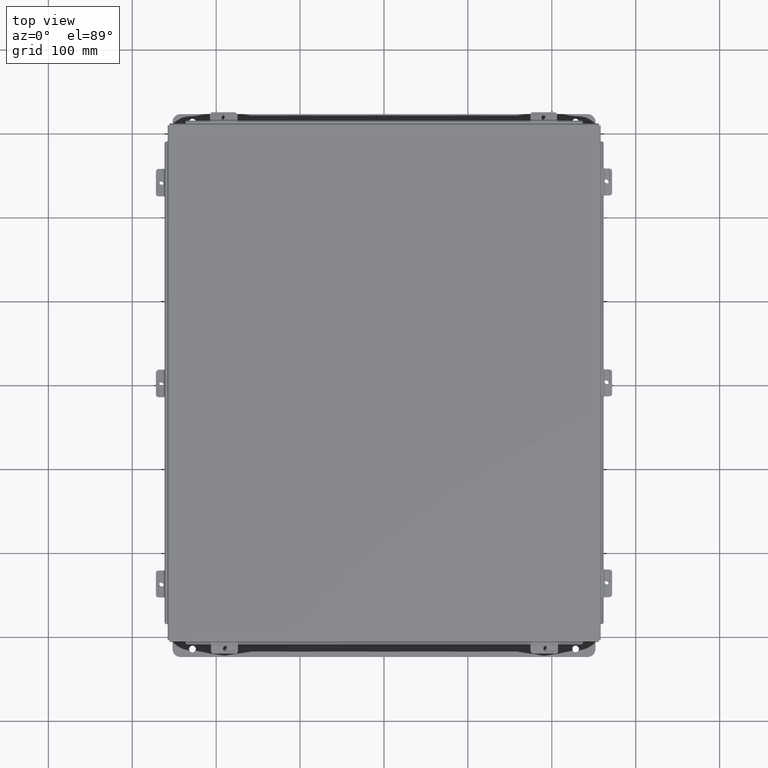
[diagram: clean part render]
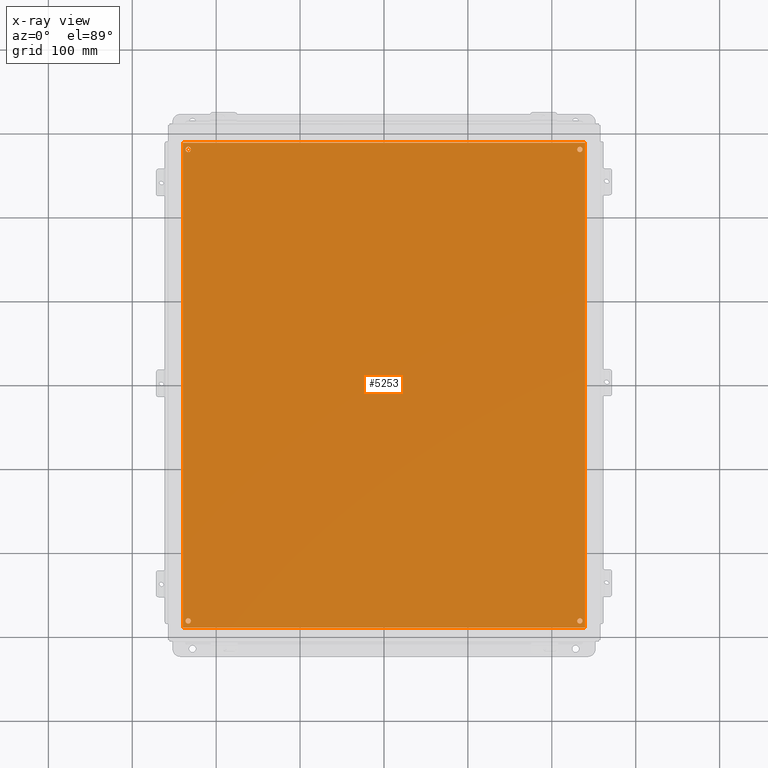
[diagram: x-ray — body ghosted, one internal face saturated and labeled with its STEP entity id]
A machine part, top view, then the same camera in x-ray: the body is ghosted and one INTERNAL B-rep face — a face not visible from any outside direction — is saturated and labeled: STEP entity #5253.
In plain terms, the highlighted planar face has unit normal (0, 0, -1).
Its self-contained STEP definition (entity closure, byte-faithful):
#9 = AXIS2_PLACEMENT_3D ( 'NONE', #3537, #8929, #4326 ) ;
#55 = DIRECTION ( 'NONE',  ( -1.000000000000000000, 0.0000000000000000000, 0.0000000000000000000 ) ) ;
#114 = CARTESIAN_POINT ( 'NONE',  ( 18.87500000000000000, 22.75000000000000000, -0.07470000000000003000 ) ) ;
#152 = EDGE_CURVE ( 'NONE', #3017, #9865, #9737, .T. ) ;
#164 = LINE ( 'NONE', #4732, #9960 ) ;
#464 = CIRCLE ( 'NONE', #9878, 0.1250000000000000600 ) ;
#611 = EDGE_CURVE ( 'NONE', #9865, #3588, #164, .T. ) ;
#654 = AXIS2_PLACEMENT_3D ( 'NONE', #7077, #2481, #7864 ) ;
#806 = ORIENTED_EDGE ( 'NONE', *, *, #2123, .T. ) ;
#948 = ORIENTED_EDGE ( 'NONE', *, *, #6760, .T. ) ;
#961 = ORIENTED_EDGE ( 'NONE', *, *, #152, .F. ) ;
#1052 = CARTESIAN_POINT ( 'NONE',  ( 0.2500000000000020000, 0.3120000000000025500, -0.07470000000000003000 ) ) ;
#1053 = CARTESIAN_POINT ( 'NONE',  ( 0.1250000000000019200, 0.3120000000000025500, -0.07470000000000003000 ) ) ;
#1317 = FACE_BOUND ( 'NONE', #1685, .T. ) ;
#1377 = VERTEX_POINT ( 'NONE', #8025 ) ;
#1685 = EDGE_LOOP ( 'NONE', ( #6758, #806 ) ) ;
#1774 = AXIS2_PLACEMENT_3D ( 'NONE', #8255, #3639, #9026 ) ;
#1839 = DIRECTION ( 'NONE',  ( -1.000000000000000000, 0.0000000000000000000, 0.0000000000000000000 ) ) ;
#1912 = VERTEX_POINT ( 'NONE', #1053 ) ;
#2037 = DIRECTION ( 'NONE',  ( -0.0000000000000000000, -1.000000000000000000, -0.0000000000000000000 ) ) ;
#2115 = CARTESIAN_POINT ( 'NONE',  ( 0.0000000000000000000, 0.0000000000000000000, -0.07470000000000003000 ) ) ;
#2123 = EDGE_CURVE ( 'NONE', #2878, #8574, #6114, .T. ) ;
#2162 = DIRECTION ( 'NONE',  ( 1.000000000000000000, 0.0000000000000000000, 0.0000000000000000000 ) ) ;
#2172 = CIRCLE ( 'NONE', #6090, 0.1250000000000000000 ) ;
#2481 = DIRECTION ( 'NONE',  ( -0.0000000000000000000, -0.0000000000000000000, 1.000000000000000000 ) ) ;
#2552 = DIRECTION ( 'NONE',  ( -0.0000000000000000000, -0.0000000000000000000, 1.000000000000000000 ) ) ;
#2600 = CARTESIAN_POINT ( 'NONE',  ( 0.2499999999999998100, 22.43799999999999900, -0.07470000000000003000 ) ) ;
#2689 = AXIS2_PLACEMENT_3D ( 'NONE', #2741, #8116, #3505 ) ;
#2741 = CARTESIAN_POINT ( 'NONE',  ( 18.62500000000000000, 0.3120000000000047700, -0.07470000000000003000 ) ) ;
#2800 = CARTESIAN_POINT ( 'NONE',  ( 0.0000000000000000000, 0.0000000000000000000, -0.07470000000000003000 ) ) ;
#2814 = CARTESIAN_POINT ( 'NONE',  ( 0.3749999999999998300, 22.43799999999999900, -0.07470000000000003000 ) ) ;
#2878 = VERTEX_POINT ( 'NONE', #5098 ) ;
#2944 = ORIENTED_EDGE ( 'NONE', *, *, #9758, .T. ) ;
#3017 = VERTEX_POINT ( 'NONE', #8919 ) ;
#3044 = AXIS2_PLACEMENT_3D ( 'NONE', #7155, #2552, #7944 ) ;
#3178 = AXIS2_PLACEMENT_3D ( 'NONE', #1052, #6451, #1839 ) ;
#3187 = CARTESIAN_POINT ( 'NONE',  ( 18.74999999999999600, 22.43800000000000200, -0.07470000000000003000 ) ) ;
#3207 = EDGE_CURVE ( 'NONE', #5996, #3017, #6091, .T. ) ;
#3325 = EDGE_CURVE ( 'NONE', #9198, #9753, #5141, .T. ) ;
#3335 = ORIENTED_EDGE ( 'NONE', *, *, #9937, .T. ) ;
#3363 = FACE_BOUND ( 'NONE', #7436, .T. ) ;
#3371 = DIRECTION ( 'NONE',  ( -1.000000000000000000, 0.0000000000000000000, 0.0000000000000000000 ) ) ;
#3505 = DIRECTION ( 'NONE',  ( -1.000000000000000000, 0.0000000000000000000, 0.0000000000000000000 ) ) ;
#3520 = EDGE_CURVE ( 'NONE', #3588, #5996, #9593, .T. ) ;
#3537 = CARTESIAN_POINT ( 'NONE',  ( 0.0000000000000000000, 0.0000000000000000000, -0.07470000000000003000 ) ) ;
#3588 = VERTEX_POINT ( 'NONE', #6691 ) ;
#3639 = DIRECTION ( 'NONE',  ( -0.0000000000000000000, -0.0000000000000000000, 1.000000000000000000 ) ) ;
#3805 = VECTOR ( 'NONE', #2162, 39.37007874015748100 ) ;
#4002 = AXIS2_PLACEMENT_3D ( 'NONE', #2600, #7990, #3371 ) ;
#4108 = DIRECTION ( 'NONE',  ( -0.0000000000000000000, -0.0000000000000000000, 1.000000000000000000 ) ) ;
#4314 = EDGE_CURVE ( 'NONE', #1912, #1377, #6525, .T. ) ;
#4326 = DIRECTION ( 'NONE',  ( -1.000000000000000000, 0.0000000000000000000, -0.0000000000000000000 ) ) ;
#4679 = DIRECTION ( 'NONE',  ( -0.0000000000000000000, -0.0000000000000000000, 1.000000000000000000 ) ) ;
#4732 = CARTESIAN_POINT ( 'NONE',  ( 0.0000000000000000000, 22.75000000000000000, -0.07470000000000003000 ) ) ;
#4883 = EDGE_CURVE ( 'NONE', #8574, #2878, #2172, .T. ) ;
#5045 = EDGE_LOOP ( 'NONE', ( #2944, #5950 ) ) ;
#5098 = CARTESIAN_POINT ( 'NONE',  ( 0.1249999999999997900, 22.43799999999999900, -0.07470000000000003000 ) ) ;
#5141 = CIRCLE ( 'NONE', #654, 0.1249999999999993500 ) ;
#5208 = CARTESIAN_POINT ( 'NONE',  ( 18.49999999999999600, 22.43800000000000200, -0.07470000000000003000 ) ) ;
#5253 = ADVANCED_FACE ( 'NONE', ( #5402, #9780, #3363, #1317, #9269 ), #6604, .T. ) ;
#5402 = FACE_BOUND ( 'NONE', #5045, .T. ) ;
#5624 = CARTESIAN_POINT ( 'NONE',  ( 18.50000000000000400, 0.3120000000000047700, -0.07470000000000003000 ) ) ;
#5749 = ORIENTED_EDGE ( 'NONE', *, *, #3520, .F. ) ;
#5941 = ORIENTED_EDGE ( 'NONE', *, *, #3325, .T. ) ;
#5950 = ORIENTED_EDGE ( 'NONE', *, *, #4314, .T. ) ;
#5985 = VERTEX_POINT ( 'NONE', #5208 ) ;
#5996 = VERTEX_POINT ( 'NONE', #2115 ) ;
#6025 = CIRCLE ( 'NONE', #3044, 0.1249999999999993500 ) ;
#6090 = AXIS2_PLACEMENT_3D ( 'NONE', #8719, #4108, #9500 ) ;
#6091 = LINE ( 'NONE', #6766, #3805 ) ;
#6114 = CIRCLE ( 'NONE', #4002, 0.1250000000000000000 ) ;
#6451 = DIRECTION ( 'NONE',  ( -0.0000000000000000000, -0.0000000000000000000, 1.000000000000000000 ) ) ;
#6525 = CIRCLE ( 'NONE', #3178, 0.1250000000000000600 ) ;
#6604 = PLANE ( 'NONE',  #9 ) ;
#6623 = VERTEX_POINT ( 'NONE', #3187 ) ;
#6691 = CARTESIAN_POINT ( 'NONE',  ( 0.0000000000000000000, 22.75000000000000000, -0.07470000000000003000 ) ) ;
#6703 = ORIENTED_EDGE ( 'NONE', *, *, #611, .F. ) ;
#6708 = ORIENTED_EDGE ( 'NONE', *, *, #3207, .F. ) ;
#6758 = ORIENTED_EDGE ( 'NONE', *, *, #4883, .T. ) ;
#6760 = EDGE_CURVE ( 'NONE', #9753, #9198, #9204, .T. ) ;
#6766 = CARTESIAN_POINT ( 'NONE',  ( 0.0000000000000000000, 0.0000000000000000000, -0.07470000000000003000 ) ) ;
#6954 = CARTESIAN_POINT ( 'NONE',  ( 18.75000000000000000, 0.3120000000000047700, -0.07470000000000003000 ) ) ;
#7077 = CARTESIAN_POINT ( 'NONE',  ( 18.62500000000000000, 0.3120000000000047700, -0.07470000000000003000 ) ) ;
#7123 = CIRCLE ( 'NONE', #1774, 0.1249999999999993500 ) ;
#7155 = CARTESIAN_POINT ( 'NONE',  ( 18.62499999999999600, 22.43800000000000200, -0.07470000000000003000 ) ) ;
#7337 = EDGE_CURVE ( 'NONE', #6623, #5985, #7123, .T. ) ;
#7436 = EDGE_LOOP ( 'NONE', ( #9339, #3335 ) ) ;
#7527 = VECTOR ( 'NONE', #2037, 39.37007874015748100 ) ;
#7607 = EDGE_LOOP ( 'NONE', ( #5749, #6703, #961, #6708 ) ) ;
#7864 = DIRECTION ( 'NONE',  ( -1.000000000000000000, 0.0000000000000000000, 0.0000000000000000000 ) ) ;
#7944 = DIRECTION ( 'NONE',  ( -1.000000000000000000, 0.0000000000000000000, 0.0000000000000000000 ) ) ;
#7990 = DIRECTION ( 'NONE',  ( -0.0000000000000000000, -0.0000000000000000000, 1.000000000000000000 ) ) ;
#8025 = CARTESIAN_POINT ( 'NONE',  ( 0.3750000000000020000, 0.3120000000000025500, -0.07470000000000003000 ) ) ;
#8116 = DIRECTION ( 'NONE',  ( -0.0000000000000000000, -0.0000000000000000000, 1.000000000000000000 ) ) ;
#8211 = CARTESIAN_POINT ( 'NONE',  ( 18.87500000000000000, 0.0000000000000000000, -0.07470000000000003000 ) ) ;
#8255 = CARTESIAN_POINT ( 'NONE',  ( 18.62499999999999600, 22.43800000000000200, -0.07470000000000003000 ) ) ;
#8574 = VERTEX_POINT ( 'NONE', #2814 ) ;
#8580 = DIRECTION ( 'NONE',  ( -1.000000000000000000, -0.0000000000000000000, -0.0000000000000000000 ) ) ;
#8719 = CARTESIAN_POINT ( 'NONE',  ( 0.2499999999999998100, 22.43799999999999900, -0.07470000000000003000 ) ) ;
#8919 = CARTESIAN_POINT ( 'NONE',  ( 18.87500000000000000, 0.0000000000000000000, -0.07470000000000003000 ) ) ;
#8929 = DIRECTION ( 'NONE',  ( 0.0000000000000000000, 0.0000000000000000000, -1.000000000000000000 ) ) ;
#8983 = DIRECTION ( 'NONE',  ( 0.0000000000000000000, 1.000000000000000000, 0.0000000000000000000 ) ) ;
#9026 = DIRECTION ( 'NONE',  ( -1.000000000000000000, 0.0000000000000000000, 0.0000000000000000000 ) ) ;
#9198 = VERTEX_POINT ( 'NONE', #5624 ) ;
#9204 = CIRCLE ( 'NONE', #2689, 0.1249999999999993500 ) ;
#9269 = FACE_OUTER_BOUND ( 'NONE', #7607, .T. ) ;
#9285 = CARTESIAN_POINT ( 'NONE',  ( 0.2500000000000020000, 0.3120000000000025500, -0.07470000000000003000 ) ) ;
#9339 = ORIENTED_EDGE ( 'NONE', *, *, #7337, .T. ) ;
#9479 = VECTOR ( 'NONE', #8983, 39.37007874015748100 ) ;
#9500 = DIRECTION ( 'NONE',  ( -1.000000000000000000, 0.0000000000000000000, 0.0000000000000000000 ) ) ;
#9593 = LINE ( 'NONE', #2800, #7527 ) ;
#9737 = LINE ( 'NONE', #8211, #9479 ) ;
#9753 = VERTEX_POINT ( 'NONE', #6954 ) ;
#9758 = EDGE_CURVE ( 'NONE', #1377, #1912, #464, .T. ) ;
#9780 = FACE_BOUND ( 'NONE', #9827, .T. ) ;
#9827 = EDGE_LOOP ( 'NONE', ( #948, #5941 ) ) ;
#9865 = VERTEX_POINT ( 'NONE', #114 ) ;
#9878 = AXIS2_PLACEMENT_3D ( 'NONE', #9285, #4679, #55 ) ;
#9937 = EDGE_CURVE ( 'NONE', #5985, #6623, #6025, .T. ) ;
#9960 = VECTOR ( 'NONE', #8580, 39.37007874015748100 ) ;